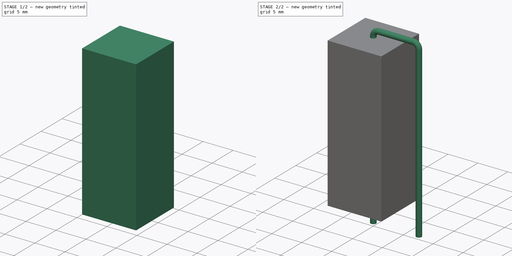
[diagram: build sequence overview — one tinted view per stage of 2, left to right]
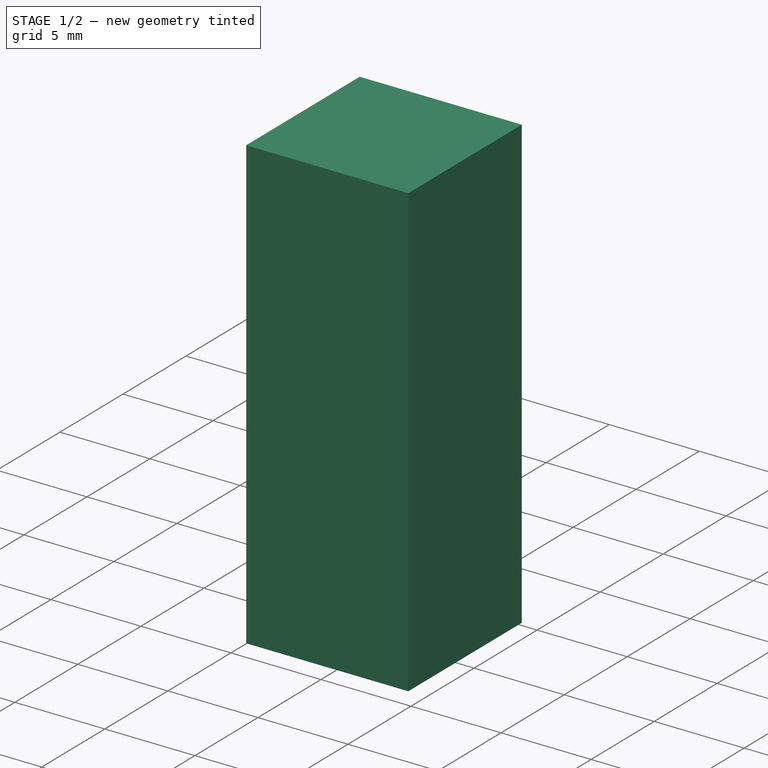
[diagram: stage 1 of 2 — iso view after this stage's code; geometry added in this stage tinted green]
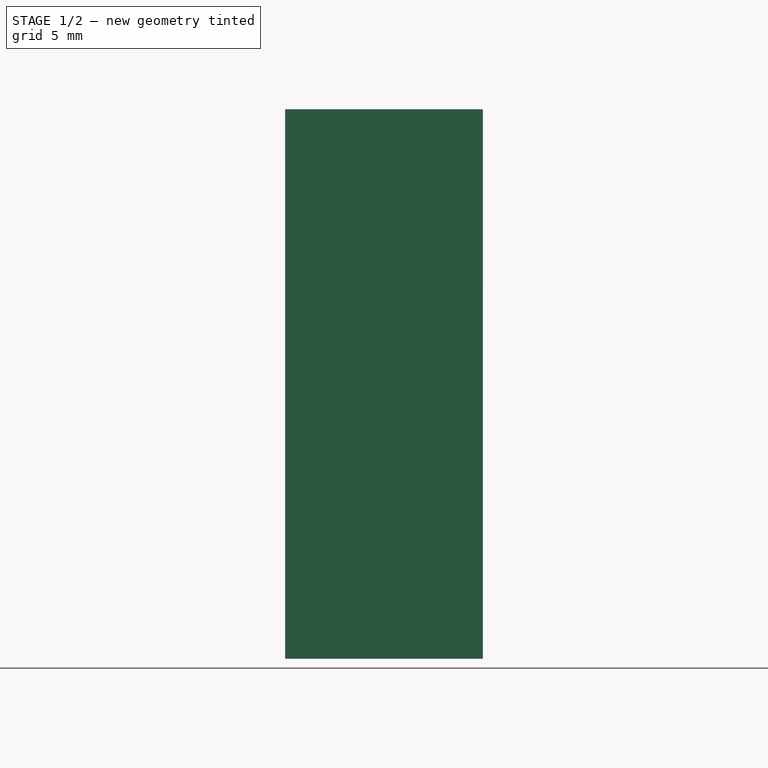
[diagram: stage 1 of 2 — front view after this stage's code; geometry added in this stage tinted green]
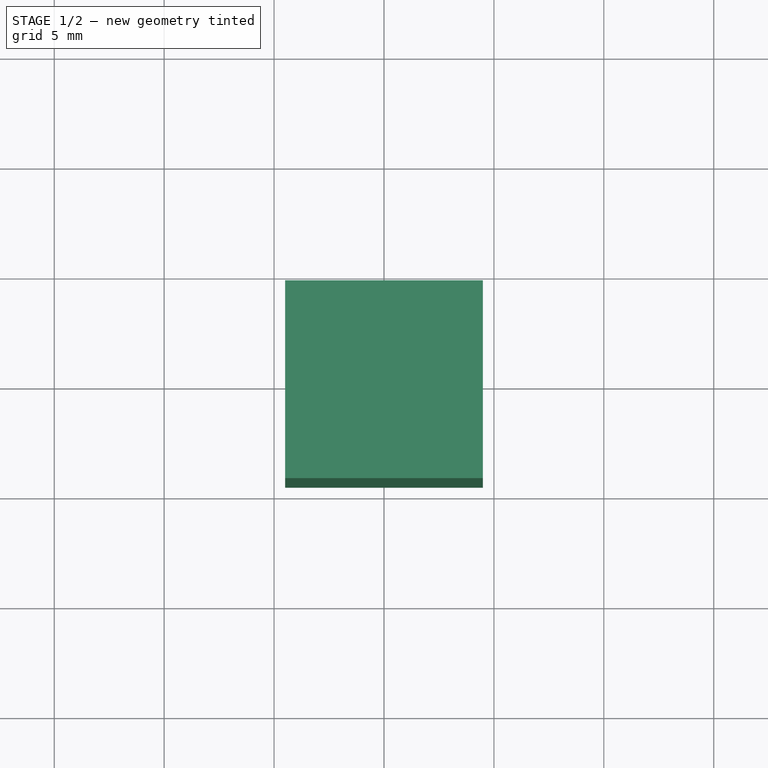
[diagram: stage 1 of 2 — top view after this stage's code; geometry added in this stage tinted green]
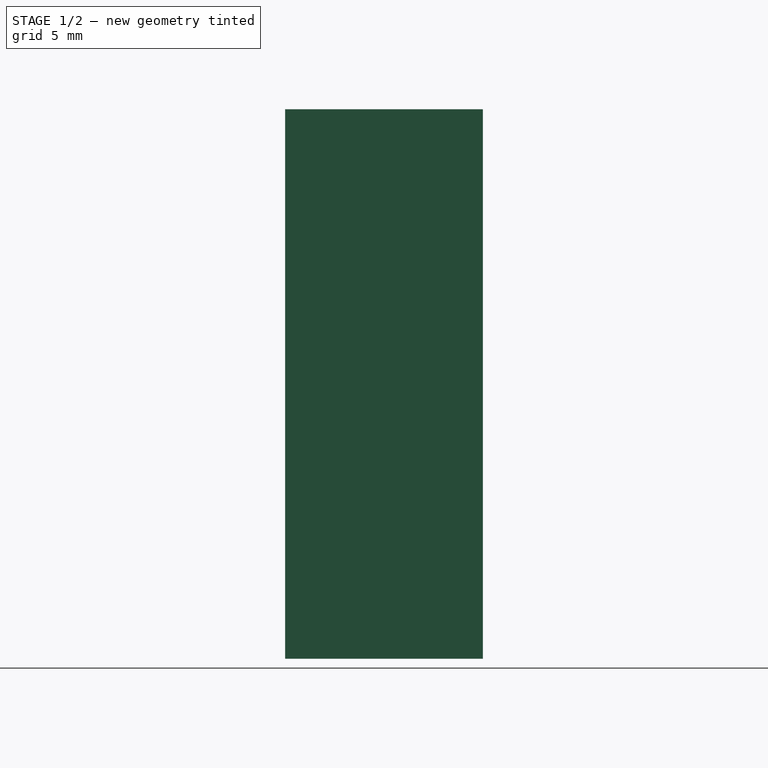
[diagram: stage 1 of 2 — right view after this stage's code; geometry added in this stage tinted green]
FCSTD DOCUMENT  (FreeCAD 0.16R6703 (Git))
Label: Resistor_Axial_Power_L25.0mm_W9.0mm_P7.62mm_Vertical
License: All rights reserved
LicenseURL: http://en.wikipedia.org/wiki/All_rights_reserved
objects: Sketcher::SketchObject×3, Spreadsheet::Sheet×1, Part::Sweep×1, PartDesign::Pad×1
note: 6 computed .brp shape members not serialized (recipe doc carries the construction recipe); baked Part::Feature solids carry a one-line shape summary decoded from their .brp

FEATURE [Sketcher::SketchObject] Sketch002
  Placement = pos=(0,0,0) rot=(1,0,0;1.5708rad)
  expr: Constraints[1] = dimensions.L
  expr: Constraints[11] = dimensions.d / 2
  expr: Constraints[9] = dimensions.d
  sketch-geometry (4):
    g0: LineSegment StartX=4.5 StartY=25.1 StartZ=0 EndX=4.5 EndY=0.1 EndZ=0
    g1: LineSegment StartX=4.5 StartY=0.1 StartZ=0 EndX=-4.5 EndY=0.1 EndZ=0
    g2: LineSegment StartX=-4.5 StartY=0.1 StartZ=0 EndX=-4.5 EndY=25.1 EndZ=0
    g3: LineSegment StartX=-4.5 StartY=25.1 StartZ=0 EndX=4.5 EndY=25.1 EndZ=0
  constraints (12):
    c: Vertical(g0)
    c: DistanceY(g0,g0) = 25
    c: Coincident(g1,g0)
    c: Horizontal(g1)
    c: Coincident(g2,g1)
    c: Vertical(g2)
    c: Coincident(g3,g2)
    c: Coincident(g3,g0)
    c: Horizontal(g3)
    c: DistanceX(g1,g1) = 9
    c: DistanceY(g-1,g0) = 0.1
    c: DistanceX(g-1,g0) = 4.5
FEATURE [PartDesign::Pad] Pad
  Length = 9
  Length2 = 100
  Midplane = true
  Placement = pos=(0,0,0) rot=(1,0,0;1.5708rad)
  Sketch = -> Sketch002
  Type = 0
  expr: Length = dimensions.dd
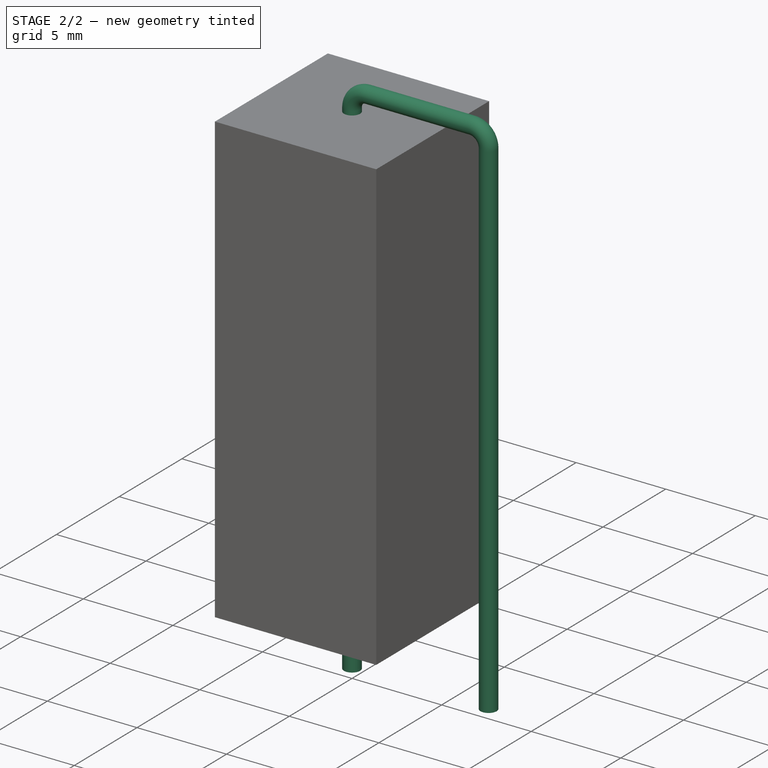
[diagram: stage 2 of 2 — iso view after this stage's code; geometry added in this stage tinted green]
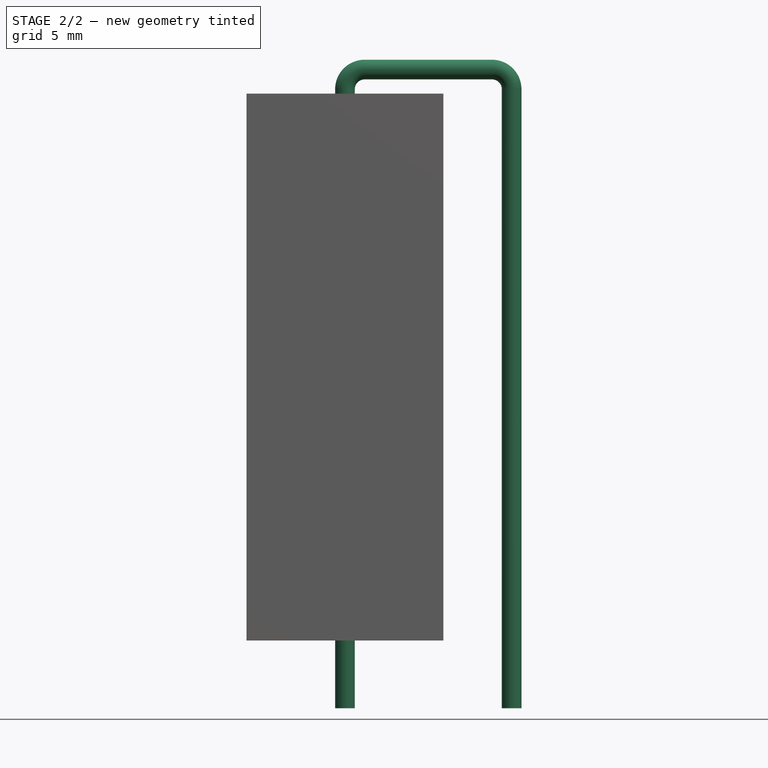
[diagram: stage 2 of 2 — front view after this stage's code; geometry added in this stage tinted green]
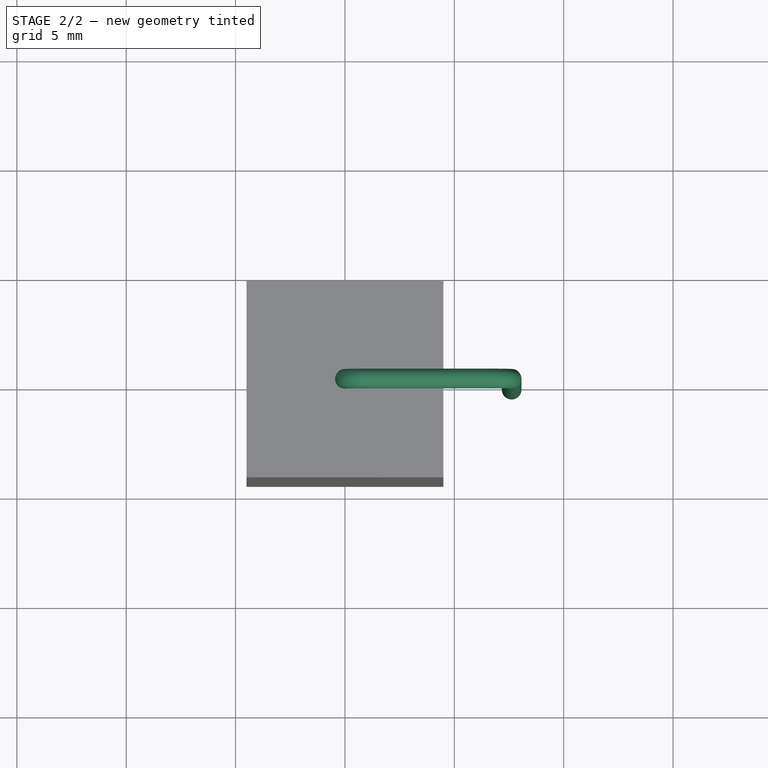
[diagram: stage 2 of 2 — top view after this stage's code; geometry added in this stage tinted green]
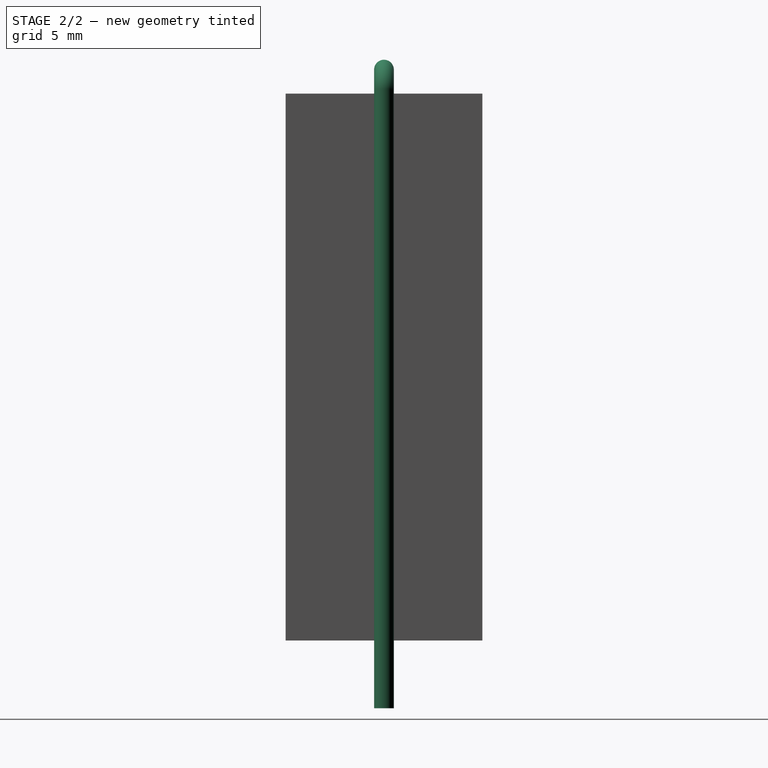
[diagram: stage 2 of 2 — right view after this stage's code; geometry added in this stage tinted green]
FEATURE [Sketcher::SketchObject] Sketch001
  Placement = pos=(0,0,0) rot=(1,0,0;1.5708rad)
  expr: Constraints[17] = dimensions.d_wire
  expr: Constraints[13] = dimensions.d_wire
  expr: Constraints[16] = dimensions.L + 0.3
  expr: Constraints[9] = dimensions.d_wire
  expr: Constraints[6] = dimensions.RM
  sketch-geometry (5):
    g0: LineSegment StartX=0 StartY=-3 StartZ=0 EndX=0 EndY=25.3 EndZ=0
    g1: ArcOfCircle CenterX=0.9 CenterY=25.3 CenterZ=0 NormalX=0 NormalY=0 NormalZ=1 Radius=0.9 StartAngle=1.57078 EndAngle=3.14159
    g2: LineSegment StartX=0.900012 StartY=26.2 StartZ=0 EndX=6.72 EndY=26.2 EndZ=0
    g3: LineSegment StartX=7.62 StartY=25.3 StartZ=0 EndX=7.62 EndY=-3 EndZ=0
    g4: ArcOfCircle CenterX=6.72 CenterY=25.3 CenterZ=0 NormalX=0 NormalY=0 NormalZ=1 Radius=0.9 StartAngle=0 EndAngle=1.5708
  constraints (18):
    c: Vertical(g0)
    c: Coincident(g1,g0)
    c: Coincident(g2,g1)
    c: Horizontal(g2)
    c: Vertical(g3)
    c: Equal(g3,g0)
    c: DistanceX(g-1,g3) = 7.62
    c: Coincident(g4,g2)
    c: Coincident(g4,g3)
    c: DistanceX(g4,g3) = 0.9
    c: PointOnObject(g0,g-2)
    c: DistanceY(g0,g-1) = 3
    c: DistanceY(g0,g3) = 0
    c: DistanceX(g0,g1) = 0.9
    c: DistanceX(g4,g2) = 0
    c: DistanceY(g4,g3) = 0
    c: DistanceY(g-1,g0) = 25.3
    c: DistanceY(g1,g1) = 0.9
FEATURE [Spreadsheet::Sheet] Spreadsheet  label="dimensions"
  cells = A1=L; B1(L)=25; A2=d; B2(d)=9; C2(dd)=9; A3=RM; B3(RM)=7.62; A4=d_wire; B4(d_wire)=0.8999999999999999
FEATURE [Sketcher::SketchObject] Sketch
  Placement = pos=(0,0,-2) rot=(0,0,1;0rad)
  expr: Constraints[1] = dimensions.d_wire / 2
  sketch-geometry (1):
    g0: Circle CenterX=0 CenterY=0 CenterZ=0 NormalX=0 NormalY=0 NormalZ=1 Radius=0.45
  constraints (2):
    c: Coincident(g0,g-1)
    c: Radius(g0) = 0.45
FEATURE [Part::Sweep] Sweep
  Frenet = false
  Sections = -> [Sketch]
  Solid = true
  Spine = -> Sketch001
  Transition = 1
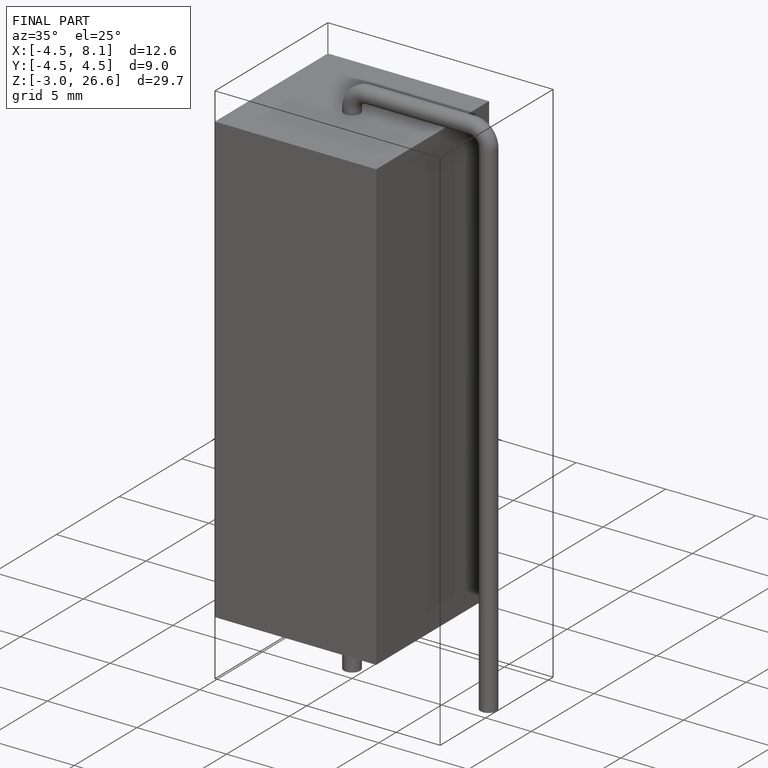
[diagram: finished part — iso view with bounding-box wireframe]
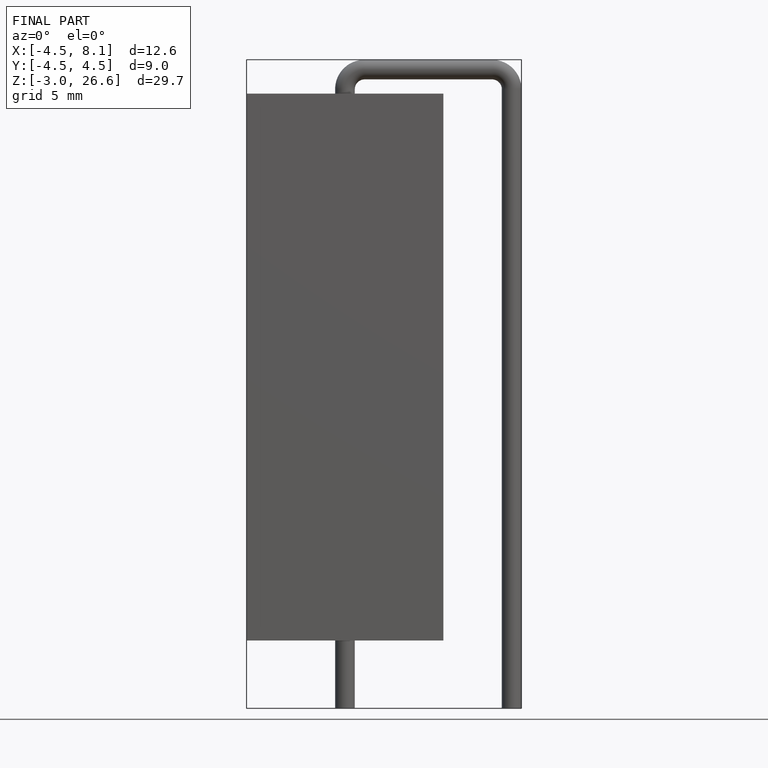
[diagram: finished part — front view with bounding-box wireframe]
